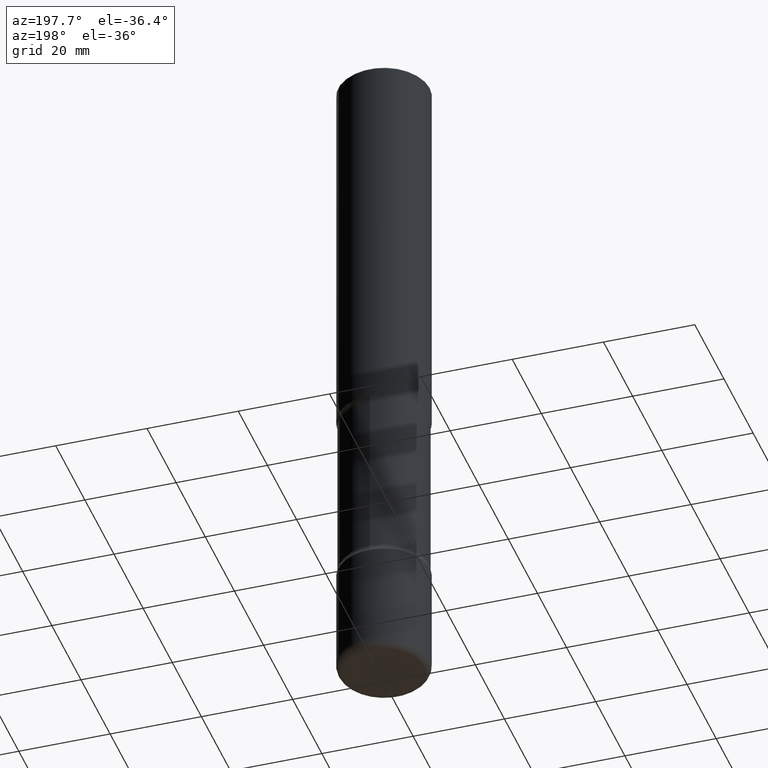
[diagram: clean part render]
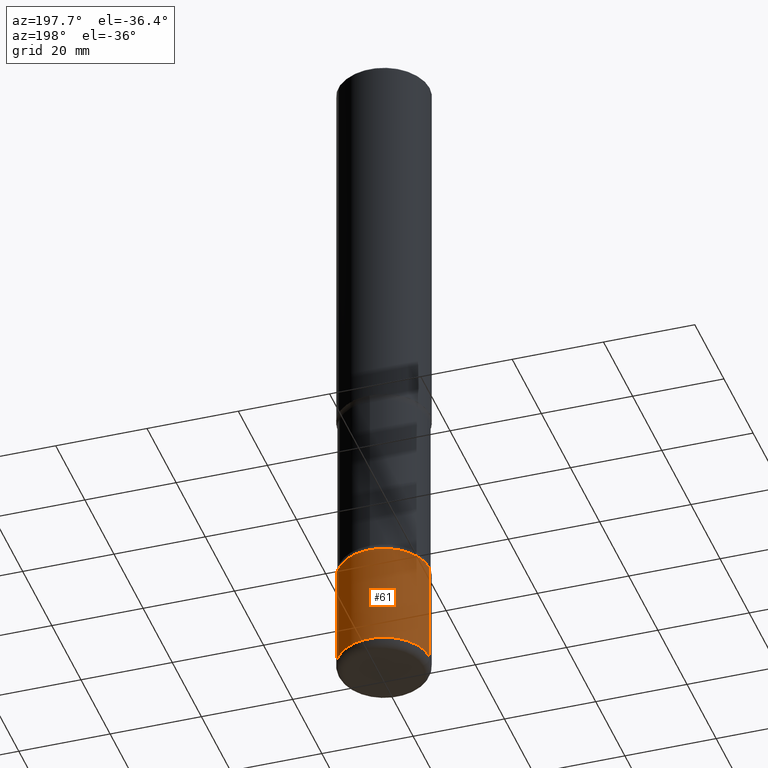
[diagram: same view with one face highlighted and labeled with its STEP entity id]
A machine part, auxiliary view. The second image highlights one B-rep face of the part: STEP entity #61.
In plain terms, the highlighted cylindrical surface (partial cylindrical patch) has radius 10 mm, axis along (-0, 0, 1).
Its self-contained STEP definition (entity closure, byte-faithful):
#15 = VECTOR ( 'NONE', #169, 39.37007874015748143 ) ;
#41 = FACE_OUTER_BOUND ( 'NONE', #89, .T. ) ;
#61 = ADVANCED_FACE ( 'NONE', ( #41 ), #222, .T. ) ;
#63 = AXIS2_PLACEMENT_3D ( 'NONE', #158, #467, #548 ) ;
#89 = EDGE_LOOP ( 'NONE', ( #477, #223, #480, #319 ) ) ;
#113 = CARTESIAN_POINT ( 'NONE',  ( 0.3937000000000001609, -1.993147037091996521E-14, -4.921199999999998020 ) ) ;
#114 = CARTESIAN_POINT ( 'NONE',  ( -0.3937000000000003830, -1.754675671448371516E-14, -5.826799999999997759 ) ) ;
#132 = DIRECTION ( 'NONE',  ( -2.445468806185136597E-29, 3.491481338843145583E-15, 1.000000000000000000 ) ) ;
#158 = CARTESIAN_POINT ( 'NONE',  ( 1.203464108899828931E-28, -1.718227796471488199E-14, -4.921199999999998020 ) ) ;
#163 = CARTESIAN_POINT ( 'NONE',  ( -0.3937000000000001609, -1.596581396425554158E-14, -4.921199999999998020 ) ) ;
#169 = DIRECTION ( 'NONE',  ( -2.445468806185136877E-29, 3.491481338843145188E-15, 1.000000000000000000 ) ) ;
#172 = CARTESIAN_POINT ( 'NONE',  ( -0.3937000000000002164, 2.797406750687515970E-15, -1.936584745033357576E-29 ) ) ;
#173 = CARTESIAN_POINT ( 'NONE',  ( 0.000000000000000000, 0.000000000000000000, 0.000000000000000000 ) ) ;
#187 = AXIS2_PLACEMENT_3D ( 'NONE', #173, #357, #519 ) ;
#199 = VERTEX_POINT ( 'NONE', #163 ) ;
#222 = CYLINDRICAL_SURFACE ( 'NONE', #187, 0.3937000000000002164 ) ;
#223 = ORIENTED_EDGE ( 'NONE', *, *, #507, .T. ) ;
#237 = AXIS2_PLACEMENT_3D ( 'NONE', #307, #132, #482 ) ;
#257 = LINE ( 'NONE', #172, #15 ) ;
#276 = VERTEX_POINT ( 'NONE', #387 ) ;
#281 = CIRCLE ( 'NONE', #237, 0.3937000000000002720 ) ;
#307 = CARTESIAN_POINT ( 'NONE',  ( 1.424925763987954893E-28, -2.034416346517123547E-14, -5.826799999999997759 ) ) ;
#317 = EDGE_CURVE ( 'NONE', #385, #199, #419, .T. ) ;
#319 = ORIENTED_EDGE ( 'NONE', *, *, #349, .F. ) ;
#344 = DIRECTION ( 'NONE',  ( -2.445468806185136877E-29, 3.491481338843145188E-15, 1.000000000000000000 ) ) ;
#349 = EDGE_CURVE ( 'NONE', #276, #385, #422, .T. ) ;
#357 = DIRECTION ( 'NONE',  ( -2.445468806185136597E-29, 3.491481338843145583E-15, 1.000000000000000000 ) ) ;
#385 = VERTEX_POINT ( 'NONE', #113 ) ;
#387 = CARTESIAN_POINT ( 'NONE',  ( 0.3937000000000003830, -2.309335587137632500E-14, -5.826799999999997759 ) ) ;
#419 = CIRCLE ( 'NONE', #63, 0.3937000000000001609 ) ;
#422 = LINE ( 'NONE', #471, #463 ) ;
#429 = VERTEX_POINT ( 'NONE', #114 ) ;
#463 = VECTOR ( 'NONE', #344, 39.37007874015748143 ) ;
#467 = DIRECTION ( 'NONE',  ( -2.445468806185136597E-29, 3.491481338843145583E-15, 1.000000000000000000 ) ) ;
#471 = CARTESIAN_POINT ( 'NONE',  ( 0.3937000000000002164, -2.749192406205084794E-15, 1.919750796630861012E-29 ) ) ;
#477 = ORIENTED_EDGE ( 'NONE', *, *, #528, .T. ) ;
#480 = ORIENTED_EDGE ( 'NONE', *, *, #317, .F. ) ;
#482 = DIRECTION ( 'NONE',  ( 1.000000000000000000, -6.982962677686263555E-15, 0.000000000000000000 ) ) ;
#507 = EDGE_CURVE ( 'NONE', #429, #199, #257, .T. ) ;
#519 = DIRECTION ( 'NONE',  ( 1.000000000000000000, -6.982962677686266711E-15, 4.876176775795935793E-29 ) ) ;
#528 = EDGE_CURVE ( 'NONE', #276, #429, #281, .T. ) ;
#548 = DIRECTION ( 'NONE',  ( 1.000000000000000000, -6.982962677686265922E-15, 0.000000000000000000 ) ) ;